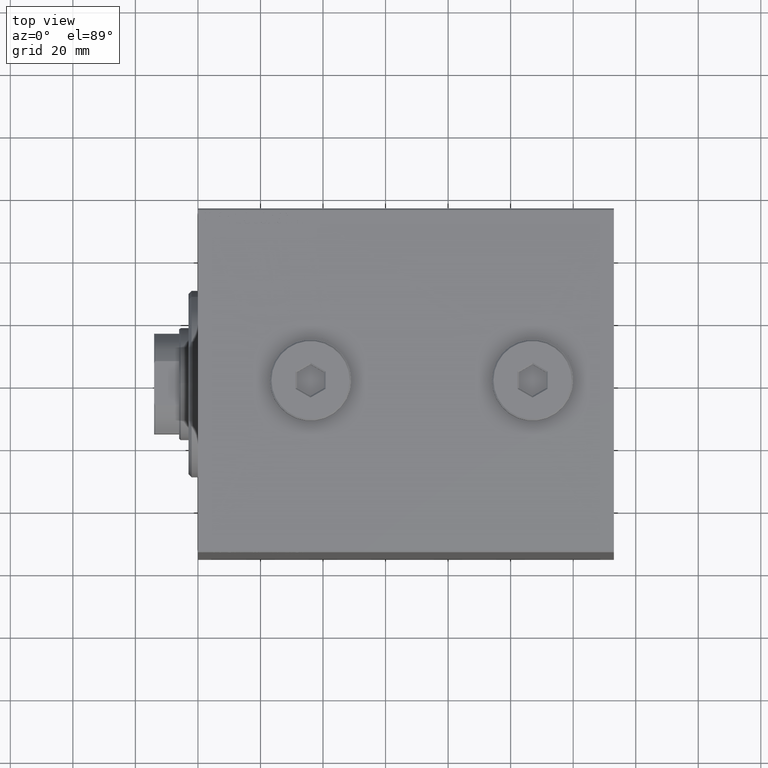
[diagram: clean part render]
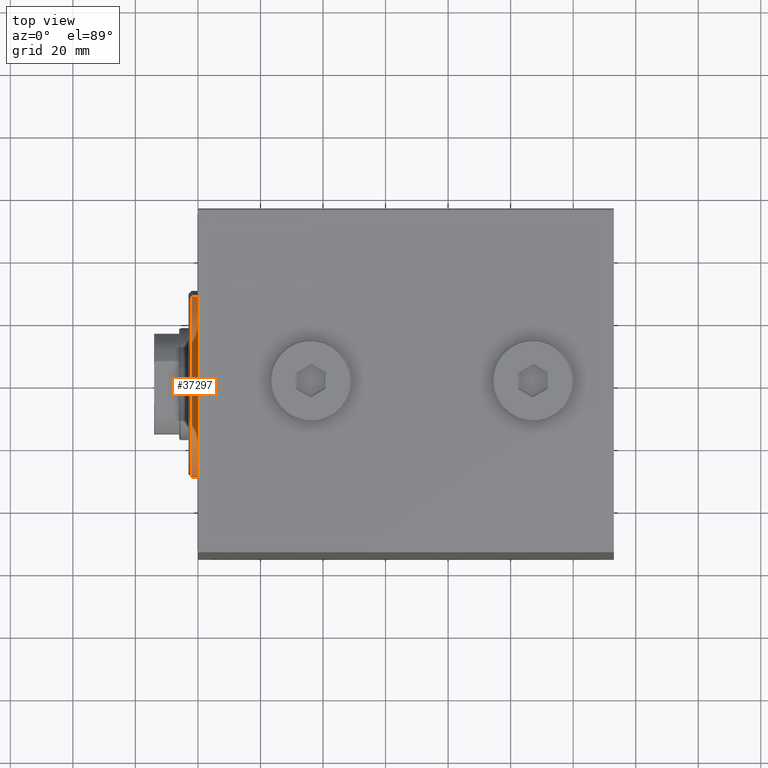
[diagram: same view with one face highlighted and labeled with its STEP entity id]
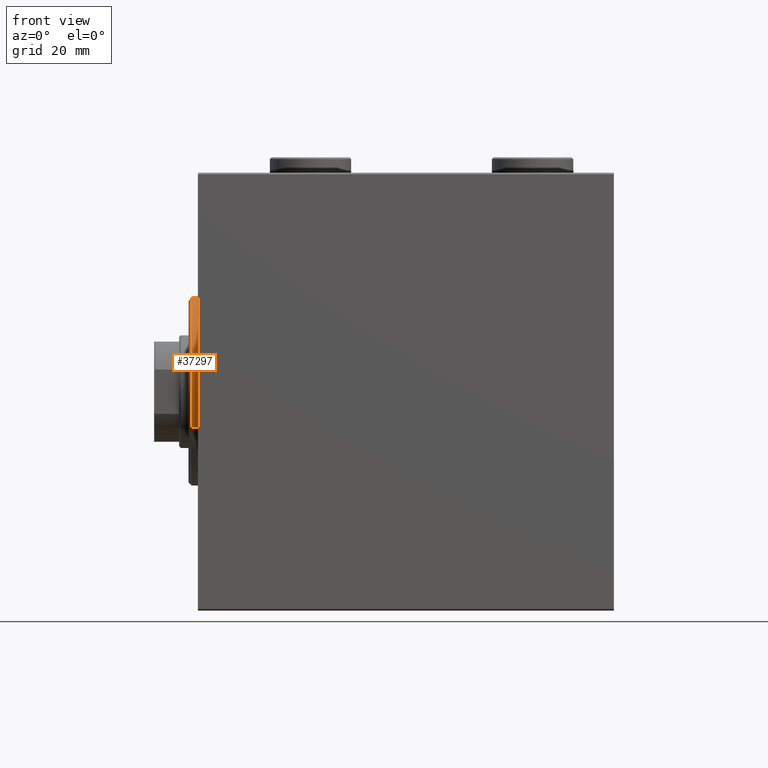
[diagram: same view with one face highlighted and labeled with its STEP entity id]
A machine part, top view. The second image highlights one B-rep face of the part: STEP entity #37297.
A second angle (front view) of the same face is appended — the face is thin or edge-on in the first view.
In plain terms, the highlighted cylindrical surface (partial cylindrical patch) has radius 30 mm, axis along (1, 0, 0).
Its self-contained STEP definition (entity closure, byte-faithful):
#1494 = AXIS2_PLACEMENT_3D ( 'NONE', #38052, #9659, #3005 ) ;
#2563 = CARTESIAN_POINT ( 'NONE',  ( 0.000000000000000000, 0.000000000000000000, 0.000000000000000000 ) ) ;
#3005 = DIRECTION ( 'NONE',  ( 0.000000000000000000, 0.000000000000000000, -1.000000000000000000 ) ) ;
#3186 = AXIS2_PLACEMENT_3D ( 'NONE', #2563, #5539, #16077 ) ;
#3796 = AXIS2_PLACEMENT_3D ( 'NONE', #39144, #39590, #29286 ) ;
#4372 = VERTEX_POINT ( 'NONE', #19644 ) ;
#5539 = DIRECTION ( 'NONE',  ( 1.000000000000000000, -0.000000000000000000, 0.000000000000000000 ) ) ;
#5822 = CARTESIAN_POINT ( 'NONE',  ( 0.000000000000000000, 3.673940397442059178E-15, -30.00000000000000000 ) ) ;
#6731 = EDGE_CURVE ( 'NONE', #22711, #26994, #28226, .T. ) ;
#7750 = CYLINDRICAL_SURFACE ( 'NONE', #3796, 30.00000000000000000 ) ;
#8950 = DIRECTION ( 'NONE',  ( -1.000000000000000000, -0.000000000000000000, -0.000000000000000000 ) ) ;
#9659 = DIRECTION ( 'NONE',  ( -1.000000000000000000, 0.000000000000000000, 0.000000000000000000 ) ) ;
#10727 = EDGE_CURVE ( 'NONE', #28065, #4372, #15835, .T. ) ;
#15429 = VECTOR ( 'NONE', #8950, 1000.000000000000000 ) ;
#15835 = LINE ( 'NONE', #40336, #15429 ) ;
#16077 = DIRECTION ( 'NONE',  ( 0.000000000000000000, 0.000000000000000000, -1.000000000000000000 ) ) ;
#17092 = CIRCLE ( 'NONE', #3186, 30.00000000000000000 ) ;
#18471 = CARTESIAN_POINT ( 'NONE',  ( 1.999999999999992228, 3.673940397442059178E-15, -30.00000000000000000 ) ) ;
#19504 = ORIENTED_EDGE ( 'NONE', *, *, #41031, .T. ) ;
#19644 = CARTESIAN_POINT ( 'NONE',  ( 0.000000000000000000, 0.000000000000000000, 30.00000000000000000 ) ) ;
#22050 = VECTOR ( 'NONE', #38742, 1000.000000000000000 ) ;
#22711 = VERTEX_POINT ( 'NONE', #18471 ) ;
#23433 = CARTESIAN_POINT ( 'NONE',  ( 1.999999999999992228, 0.000000000000000000, 30.00000000000000000 ) ) ;
#23455 = CIRCLE ( 'NONE', #1494, 30.00000000000000000 ) ;
#24773 = CARTESIAN_POINT ( 'NONE',  ( 3.000000000000000000, 3.673940397442059178E-15, -30.00000000000000000 ) ) ;
#25470 = ORIENTED_EDGE ( 'NONE', *, *, #31571, .T. ) ;
#26994 = VERTEX_POINT ( 'NONE', #5822 ) ;
#28065 = VERTEX_POINT ( 'NONE', #23433 ) ;
#28226 = LINE ( 'NONE', #24773, #22050 ) ;
#28796 = EDGE_LOOP ( 'NONE', ( #31728, #25470, #36205, #19504 ) ) ;
#29286 = DIRECTION ( 'NONE',  ( 0.000000000000000000, 0.000000000000000000, 1.000000000000000000 ) ) ;
#31571 = EDGE_CURVE ( 'NONE', #22711, #28065, #23455, .T. ) ;
#31728 = ORIENTED_EDGE ( 'NONE', *, *, #6731, .F. ) ;
#36154 = FACE_OUTER_BOUND ( 'NONE', #28796, .T. ) ;
#36205 = ORIENTED_EDGE ( 'NONE', *, *, #10727, .T. ) ;
#37297 = ADVANCED_FACE ( 'NONE', ( #36154 ), #7750, .T. ) ;
#38052 = CARTESIAN_POINT ( 'NONE',  ( 1.999999999999992228, 0.000000000000000000, 0.000000000000000000 ) ) ;
#38742 = DIRECTION ( 'NONE',  ( -1.000000000000000000, -0.000000000000000000, -0.000000000000000000 ) ) ;
#39144 = CARTESIAN_POINT ( 'NONE',  ( 3.000000000000000000, 0.000000000000000000, 0.000000000000000000 ) ) ;
#39590 = DIRECTION ( 'NONE',  ( -1.000000000000000000, -0.000000000000000000, -0.000000000000000000 ) ) ;
#40336 = CARTESIAN_POINT ( 'NONE',  ( 3.000000000000000000, 0.000000000000000000, 30.00000000000000000 ) ) ;
#41031 = EDGE_CURVE ( 'NONE', #4372, #26994, #17092, .T. ) ;